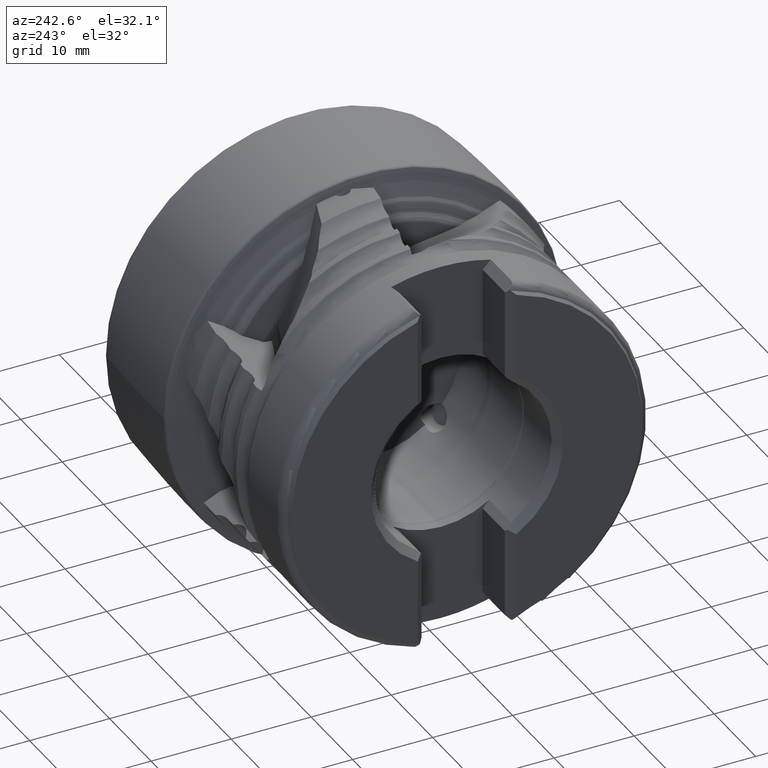
[diagram: clean part render]
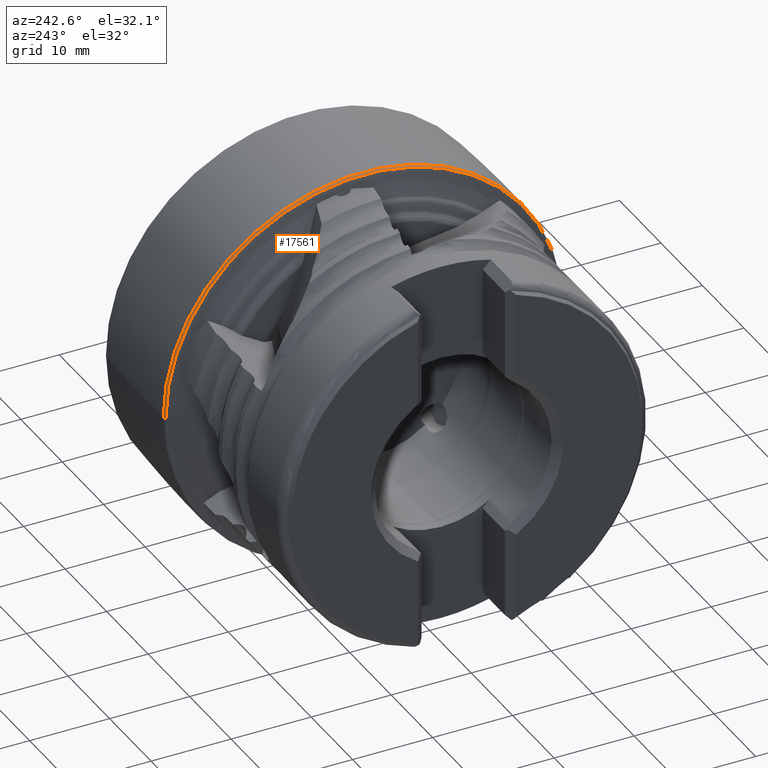
[diagram: same view with one face highlighted and labeled with its STEP entity id]
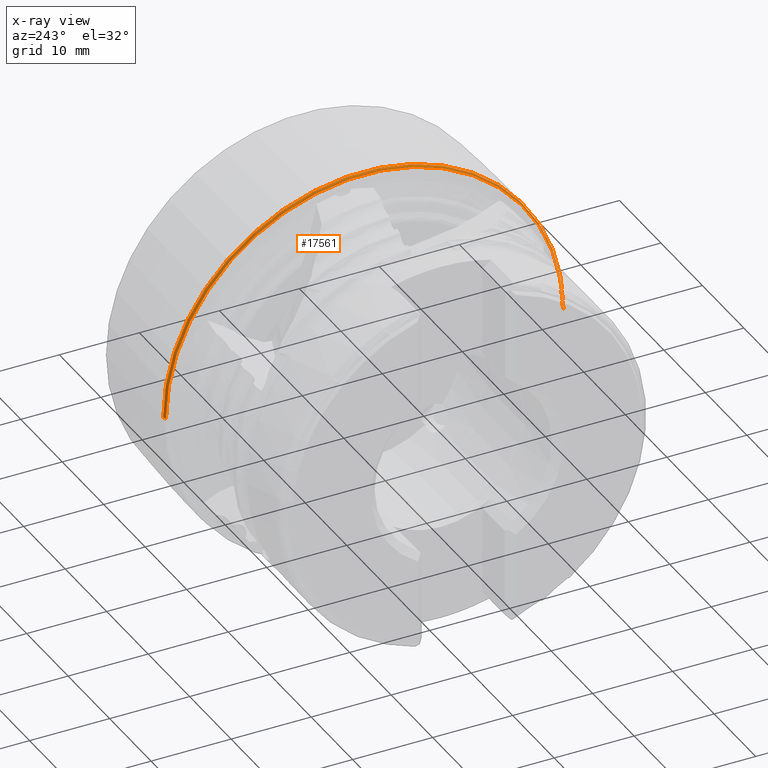
[diagram: x-ray of the same camera — body ghosted, the highlighted face saturated]
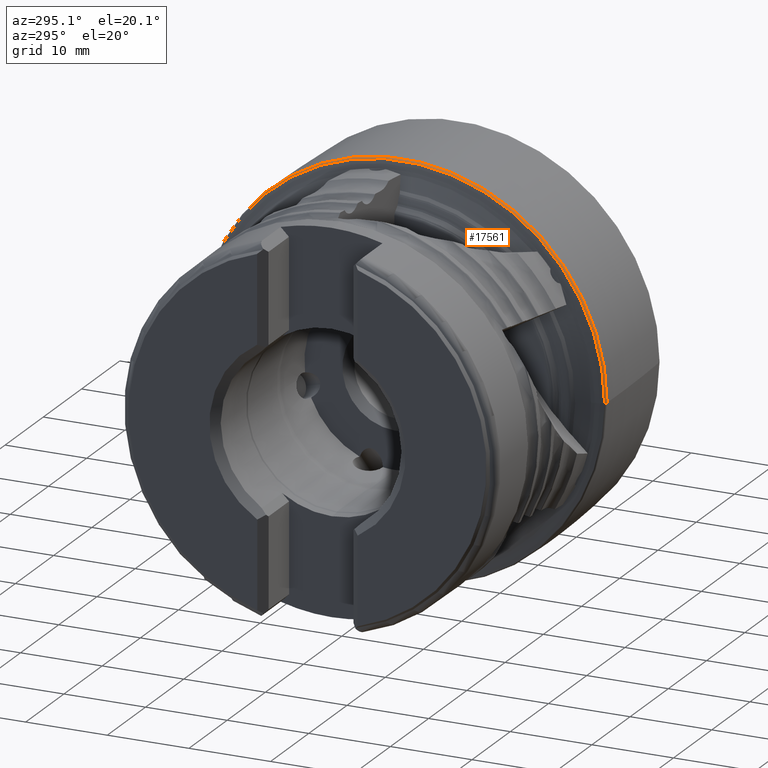
[diagram: same view with one face highlighted and labeled with its STEP entity id]
A machine part, auxiliary view. The second image highlights one B-rep face of the part: STEP entity #17561.
The next image is the same camera in x-ray: the body ghosted, the highlighted face saturated — about 1% of this face is hidden behind the body in this view.
A second angle (auxiliary view) of the same face is appended — the face is thin or edge-on in the first view.
In plain terms, the highlighted toroidal blend (fillet) surface has major radius 24.5075 mm and minor (blend) radius 0.4621 mm.
Its self-contained STEP definition (entity closure, byte-faithful):
#970 = VERTEX_POINT ( 'NONE', #2469 ) ;
#2130 = EDGE_CURVE ( 'NONE', #17154, #8275, #3573, .T. ) ;
#2469 = CARTESIAN_POINT ( 'NONE',  ( -13.92420399300915790, 24.96958500705501294, 0.0000000000000000000 ) ) ;
#3141 = CIRCLE ( 'NONE', #13678, 24.96958500705502004 ) ;
#3573 = CIRCLE ( 'NONE', #3881, 0.4620648196777648042 ) ;
#3881 = AXIS2_PLACEMENT_3D ( 'NONE', #16431, #13650, #15100 ) ;
#4325 = AXIS2_PLACEMENT_3D ( 'NONE', #8698, #11621, #17527 ) ;
#4670 = TOROIDAL_SURFACE ( 'NONE', #8766, 24.50752217853902337, 0.4620648196777650818 ) ;
#6038 = EDGE_CURVE ( 'NONE', #970, #8275, #3141, .T. ) ;
#7304 = CARTESIAN_POINT ( 'NONE',  ( -13.92420399300915435, -2.961837752232612080E-15, 0.0000000000000000000 ) ) ;
#7389 = CARTESIAN_POINT ( 'NONE',  ( -14.26982582987200132, -3.003716271042802436E-15, 0.0000000000000000000 ) ) ;
#7843 = CARTESIAN_POINT ( 'NONE',  ( -13.92556049131357554, -3.469446951953614189E-15, 0.0000000000000000000 ) ) ;
#7937 = AXIS2_PLACEMENT_3D ( 'NONE', #7389, #14519, #8677 ) ;
#8275 = VERTEX_POINT ( 'NONE', #9905 ) ;
#8677 = DIRECTION ( 'NONE',  ( -1.398084397002414672E-16, 1.000000000000000000, 0.0000000000000000000 ) ) ;
#8698 = CARTESIAN_POINT ( 'NONE',  ( -13.92556049131357909, 24.50752217853901982, 0.0000000000000000000 ) ) ;
#8766 = AXIS2_PLACEMENT_3D ( 'NONE', #7843, #18367, #11128 ) ;
#9833 = ORIENTED_EDGE ( 'NONE', *, *, #14706, .F. ) ;
#9905 = CARTESIAN_POINT ( 'NONE',  ( -13.92420399300915079, -24.96958500705502004, 3.057892235492766371E-15 ) ) ;
#10890 = ORIENTED_EDGE ( 'NONE', *, *, #6038, .F. ) ;
#11097 = ORIENTED_EDGE ( 'NONE', *, *, #2130, .T. ) ;
#11128 = DIRECTION ( 'NONE',  ( -1.211686136220874939E-16, 1.000000000000000000, 0.0000000000000000000 ) ) ;
#11166 = CARTESIAN_POINT ( 'NONE',  ( -14.26982582987199777, -24.81571898944254073, 3.039049082896099404E-15 ) ) ;
#11621 = DIRECTION ( 'NONE',  ( -0.0000000000000000000, 0.0000000000000000000, -1.000000000000000000 ) ) ;
#12774 = EDGE_CURVE ( 'NONE', #18509, #17154, #13095, .T. ) ;
#13095 = CIRCLE ( 'NONE', #7937, 24.81571898944253718 ) ;
#13650 = DIRECTION ( 'NONE',  ( -1.483887548294118319E-32, 1.224646799147353207E-16, 1.000000000000000000 ) ) ;
#13678 = AXIS2_PLACEMENT_3D ( 'NONE', #7304, #15514, #17493 ) ;
#13717 = ORIENTED_EDGE ( 'NONE', *, *, #12774, .T. ) ;
#14519 = DIRECTION ( 'NONE',  ( 1.000000000000000000, 1.211686136220874939E-16, -0.0000000000000000000 ) ) ;
#14706 = EDGE_CURVE ( 'NONE', #18509, #970, #17543, .T. ) ;
#15100 = DIRECTION ( 'NONE',  ( 0.0000000000000000000, -1.000000000000000000, 1.224646799147350989E-16 ) ) ;
#15514 = DIRECTION ( 'NONE',  ( 1.000000000000000000, 1.211686136220874939E-16, -0.0000000000000000000 ) ) ;
#16431 = CARTESIAN_POINT ( 'NONE',  ( -13.92556049131357199, -24.50752217853902692, 3.001305859098058456E-15 ) ) ;
#16574 = FACE_OUTER_BOUND ( 'NONE', #16693, .T. ) ;
#16693 = EDGE_LOOP ( 'NONE', ( #13717, #11097, #10890, #9833 ) ) ;
#17154 = VERTEX_POINT ( 'NONE', #11166 ) ;
#17493 = DIRECTION ( 'NONE',  ( -1.389469208628553749E-16, 1.000000000000000000, 0.0000000000000000000 ) ) ;
#17527 = DIRECTION ( 'NONE',  ( -1.000000000000000000, 0.0000000000000000000, 0.0000000000000000000 ) ) ;
#17543 = CIRCLE ( 'NONE', #4325, 0.4620648196777648042 ) ;
#17561 = ADVANCED_FACE ( 'NONE', ( #16574 ), #4670, .T. ) ;
#18367 = DIRECTION ( 'NONE',  ( 1.000000000000000000, 1.211686136220874939E-16, -0.0000000000000000000 ) ) ;
#18391 = CARTESIAN_POINT ( 'NONE',  ( -14.26982582987200487, 24.81571898944253363, 0.0000000000000000000 ) ) ;
#18509 = VERTEX_POINT ( 'NONE', #18391 ) ;